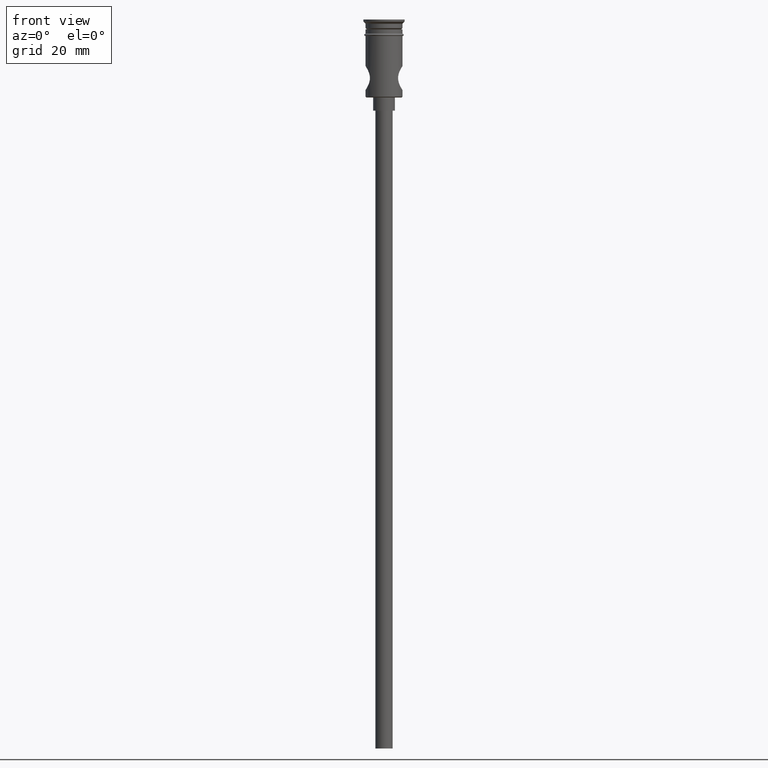
[diagram: clean part render]
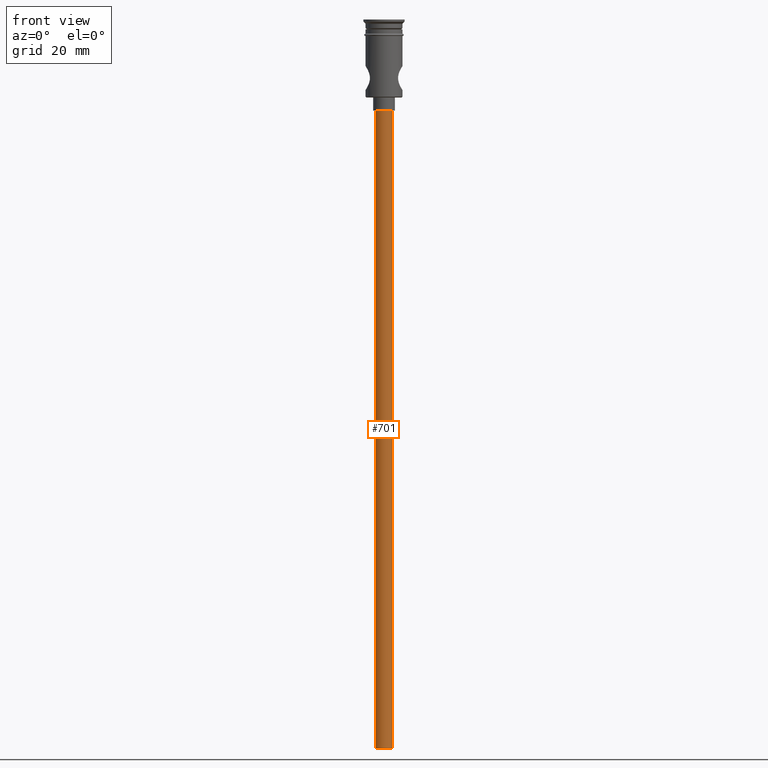
[diagram: same view with one face highlighted and labeled with its STEP entity id]
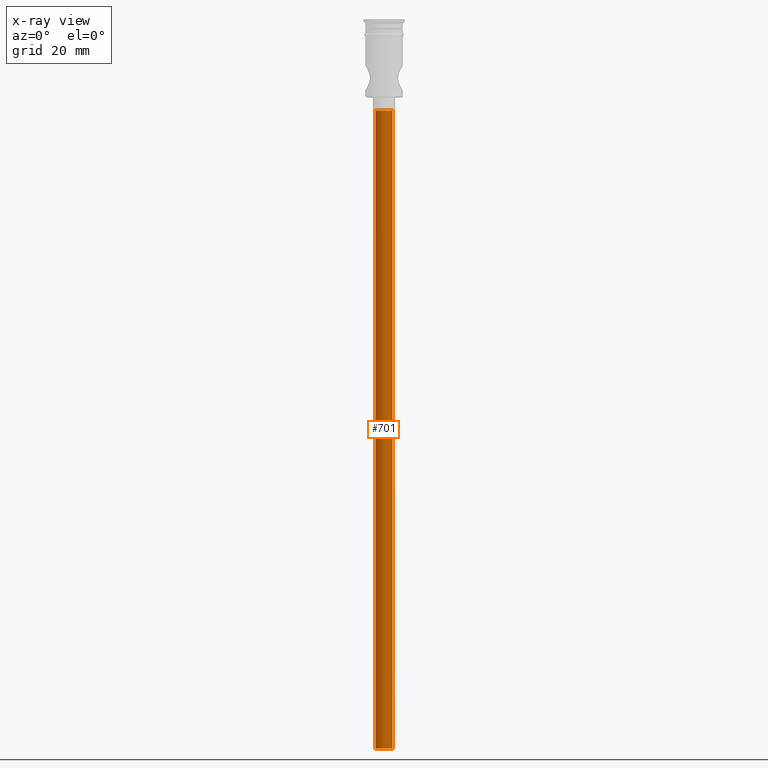
[diagram: x-ray of the same camera — body ghosted, the highlighted face saturated]
A machine part, front view. The second image highlights one B-rep face of the part: STEP entity #701.
The next image is the same camera in x-ray: the body ghosted, the highlighted face saturated — about 0% of this face is hidden behind the body in this view.
In plain terms, the highlighted cylindrical surface (edge-blend (fillet) strip) has radius 2 mm, axis along (-0, -0, 1).
Its self-contained STEP definition (entity closure, byte-faithful):
#16 = LINE ( 'NONE', #695, #140 ) ;
#30 = CYLINDRICAL_SURFACE ( 'NONE', #97, 2.000000000000000000 ) ;
#97 = AXIS2_PLACEMENT_3D ( 'NONE', #832, #1025, #1342 ) ;
#110 = LINE ( 'NONE', #991, #678 ) ;
#125 = ORIENTED_EDGE ( 'NONE', *, *, #780, .T. ) ;
#140 = VECTOR ( 'NONE', #907, 1000.000000000000000 ) ;
#166 = AXIS2_PLACEMENT_3D ( 'NONE', #686, #454, #934 ) ;
#180 = AXIS2_PLACEMENT_3D ( 'NONE', #467, #244, #339 ) ;
#203 = EDGE_LOOP ( 'NONE', ( #943, #1008, #1248, #125 ) ) ;
#228 = DIRECTION ( 'NONE',  ( -0.000000000000000000, -0.000000000000000000, 1.000000000000000000 ) ) ;
#244 = DIRECTION ( 'NONE',  ( 0.000000000000000000, 0.000000000000000000, -1.000000000000000000 ) ) ;
#339 = DIRECTION ( 'NONE',  ( -1.000000000000000000, 0.000000000000000000, 0.000000000000000000 ) ) ;
#454 = DIRECTION ( 'NONE',  ( 0.000000000000000000, 0.000000000000000000, -1.000000000000000000 ) ) ;
#467 = CARTESIAN_POINT ( 'NONE',  ( 0.000000000000000000, 0.000000000000000000, -167.9999999999999716 ) ) ;
#576 = FACE_OUTER_BOUND ( 'NONE', #203, .T. ) ;
#603 = CARTESIAN_POINT ( 'NONE',  ( -2.000000000000000000, 2.449293598294706414E-16, -20.99999999999999645 ) ) ;
#605 = VERTEX_POINT ( 'NONE', #1220 ) ;
#610 = EDGE_CURVE ( 'NONE', #1121, #1243, #110, .T. ) ;
#678 = VECTOR ( 'NONE', #228, 1000.000000000000000 ) ;
#686 = CARTESIAN_POINT ( 'NONE',  ( 0.000000000000000000, 0.000000000000000000, -20.99999999999999645 ) ) ;
#695 = CARTESIAN_POINT ( 'NONE',  ( 2.000000000000000000, 0.000000000000000000, -167.9999999999999716 ) ) ;
#701 = ADVANCED_FACE ( 'NONE', ( #576 ), #30, .T. ) ;
#709 = CARTESIAN_POINT ( 'NONE',  ( 2.000000000000000000, 0.000000000000000000, -20.99999999999999645 ) ) ;
#745 = CIRCLE ( 'NONE', #180, 2.000000000000000000 ) ;
#757 = CARTESIAN_POINT ( 'NONE',  ( -2.000000000000000000, 2.449293598294706414E-16, -167.9999999999999716 ) ) ;
#764 = VERTEX_POINT ( 'NONE', #709 ) ;
#771 = EDGE_CURVE ( 'NONE', #605, #764, #16, .T. ) ;
#780 = EDGE_CURVE ( 'NONE', #764, #1243, #955, .T. ) ;
#832 = CARTESIAN_POINT ( 'NONE',  ( 0.000000000000000000, 0.000000000000000000, -167.9999999999999716 ) ) ;
#907 = DIRECTION ( 'NONE',  ( -0.000000000000000000, -0.000000000000000000, 1.000000000000000000 ) ) ;
#934 = DIRECTION ( 'NONE',  ( -1.000000000000000000, 0.000000000000000000, 0.000000000000000000 ) ) ;
#943 = ORIENTED_EDGE ( 'NONE', *, *, #610, .F. ) ;
#955 = CIRCLE ( 'NONE', #166, 2.000000000000000000 ) ;
#991 = CARTESIAN_POINT ( 'NONE',  ( -2.000000000000000000, 2.449293598294706414E-16, -167.9999999999999716 ) ) ;
#1008 = ORIENTED_EDGE ( 'NONE', *, *, #1176, .F. ) ;
#1025 = DIRECTION ( 'NONE',  ( -0.000000000000000000, -0.000000000000000000, 1.000000000000000000 ) ) ;
#1121 = VERTEX_POINT ( 'NONE', #757 ) ;
#1176 = EDGE_CURVE ( 'NONE', #605, #1121, #745, .T. ) ;
#1220 = CARTESIAN_POINT ( 'NONE',  ( 2.000000000000000000, 0.000000000000000000, -167.9999999999999716 ) ) ;
#1243 = VERTEX_POINT ( 'NONE', #603 ) ;
#1248 = ORIENTED_EDGE ( 'NONE', *, *, #771, .T. ) ;
#1342 = DIRECTION ( 'NONE',  ( 1.000000000000000000, 0.000000000000000000, 0.000000000000000000 ) ) ;